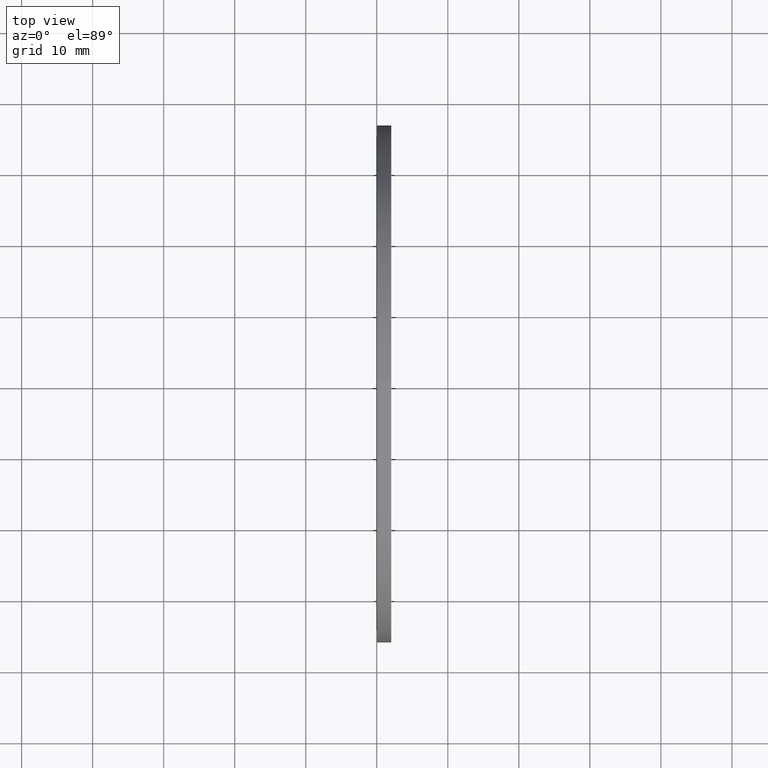
[diagram: clean part render]
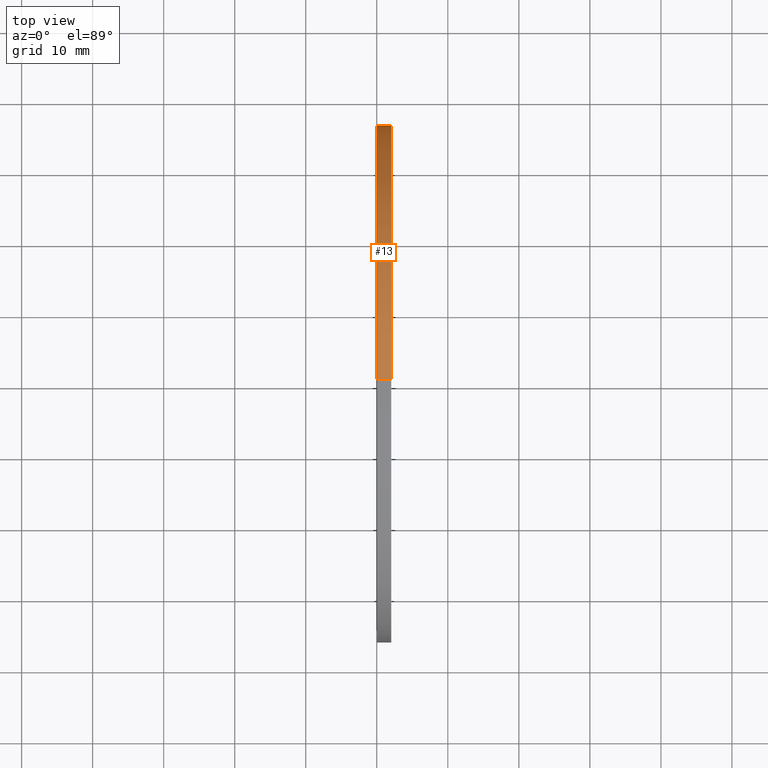
[diagram: same view with one face highlighted and labeled with its STEP entity id]
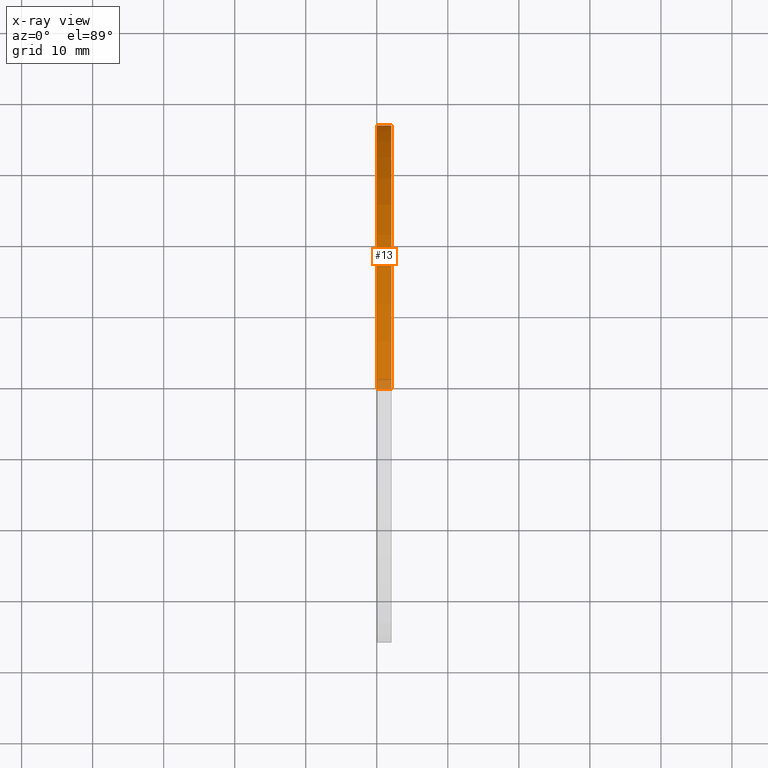
[diagram: x-ray of the same camera — body ghosted, the highlighted face saturated]
A machine part, top view. The second image highlights one B-rep face of the part: STEP entity #13.
The next image is the same camera in x-ray: the body ghosted, the highlighted face saturated — about 3% of this face is hidden behind the body in this view.
In plain terms, the highlighted cylindrical surface (partial cylindrical patch) has radius 36.449 mm, axis along (-1, 0, 0).
Its self-contained STEP definition (entity closure, byte-faithful):
#7 = ORIENTED_EDGE ( 'NONE', *, *, #39, .F. ) ;
#11 = ORIENTED_EDGE ( 'NONE', *, *, #56, .T. ) ;
#12 = VERTEX_POINT ( 'NONE', #61 ) ;
#13 = ADVANCED_FACE ( 'NONE', ( #120 ), #90, .T. ) ;
#14 = EDGE_LOOP ( 'NONE', ( #40, #11, #38, #7 ) ) ;
#16 = VERTEX_POINT ( 'NONE', #146 ) ;
#17 = VERTEX_POINT ( 'NONE', #115 ) ;
#18 = EDGE_CURVE ( 'NONE', #16, #17, #88, .T. ) ;
#38 = ORIENTED_EDGE ( 'NONE', *, *, #44, .F. ) ;
#39 = EDGE_CURVE ( 'NONE', #16, #45, #137, .T. ) ;
#40 = ORIENTED_EDGE ( 'NONE', *, *, #18, .T. ) ;
#44 = EDGE_CURVE ( 'NONE', #45, #12, #101, .T. ) ;
#45 = VERTEX_POINT ( 'NONE', #97 ) ;
#56 = EDGE_CURVE ( 'NONE', #17, #12, #252, .T. ) ;
#61 = CARTESIAN_POINT ( 'NONE',  ( 0.0000000000000000000, 1.757368156776452000E-016, -1.435000000000000100 ) ) ;
#78 = CARTESIAN_POINT ( 'NONE',  ( 0.0000000000000000000, 0.0000000000000000000, 0.0000000000000000000 ) ) ;
#87 = AXIS2_PLACEMENT_3D ( 'NONE', #95, #94, #93 ) ;
#88 = CIRCLE ( 'NONE', #87, 1.435000000000000100 ) ;
#90 = CYLINDRICAL_SURFACE ( 'NONE', #114, 1.435000000000000100 ) ;
#93 = DIRECTION ( 'NONE',  ( 0.0000000000000000000, 0.0000000000000000000, 1.000000000000000000 ) ) ;
#94 = DIRECTION ( 'NONE',  ( -1.000000000000000000, 0.0000000000000000000, 0.0000000000000000000 ) ) ;
#95 = CARTESIAN_POINT ( 'NONE',  ( 0.07999999999999996000, 0.0000000000000000000, 0.0000000000000000000 ) ) ;
#97 = CARTESIAN_POINT ( 'NONE',  ( 0.0000000000000000000, 0.0000000000000000000, 1.435000000000000100 ) ) ;
#98 = DIRECTION ( 'NONE',  ( 0.0000000000000000000, 0.0000000000000000000, 1.000000000000000000 ) ) ;
#99 = DIRECTION ( 'NONE',  ( -1.000000000000000000, 0.0000000000000000000, 0.0000000000000000000 ) ) ;
#100 = AXIS2_PLACEMENT_3D ( 'NONE', #78, #99, #98 ) ;
#101 = CIRCLE ( 'NONE', #100, 1.435000000000000100 ) ;
#107 = DIRECTION ( 'NONE',  ( -1.000000000000000000, 0.0000000000000000000, 0.0000000000000000000 ) ) ;
#108 = CARTESIAN_POINT ( 'NONE',  ( -1.721125226614714300, 0.0000000000000000000, 0.0000000000000000000 ) ) ;
#114 = AXIS2_PLACEMENT_3D ( 'NONE', #108, #107, #147 ) ;
#115 = CARTESIAN_POINT ( 'NONE',  ( 0.07999999999999996000, 1.757368156776452000E-016, -1.435000000000000100 ) ) ;
#120 = FACE_OUTER_BOUND ( 'NONE', #14, .T. ) ;
#134 = DIRECTION ( 'NONE',  ( -1.000000000000000000, 0.0000000000000000000, 0.0000000000000000000 ) ) ;
#135 = VECTOR ( 'NONE', #134, 39.37007874015748100 ) ;
#136 = CARTESIAN_POINT ( 'NONE',  ( -1.721125226614714300, 0.0000000000000000000, 1.435000000000000100 ) ) ;
#137 = LINE ( 'NONE', #136, #135 ) ;
#146 = CARTESIAN_POINT ( 'NONE',  ( 0.07999999999999996000, 0.0000000000000000000, 1.435000000000000100 ) ) ;
#147 = DIRECTION ( 'NONE',  ( 0.0000000000000000000, 0.0000000000000000000, 1.000000000000000000 ) ) ;
#171 = VECTOR ( 'NONE', #187, 39.37007874015748100 ) ;
#183 = CARTESIAN_POINT ( 'NONE',  ( -1.721125226614714300, 1.757368156776452000E-016, -1.435000000000000100 ) ) ;
#187 = DIRECTION ( 'NONE',  ( -1.000000000000000000, 0.0000000000000000000, 0.0000000000000000000 ) ) ;
#252 = LINE ( 'NONE', #183, #171 ) ;